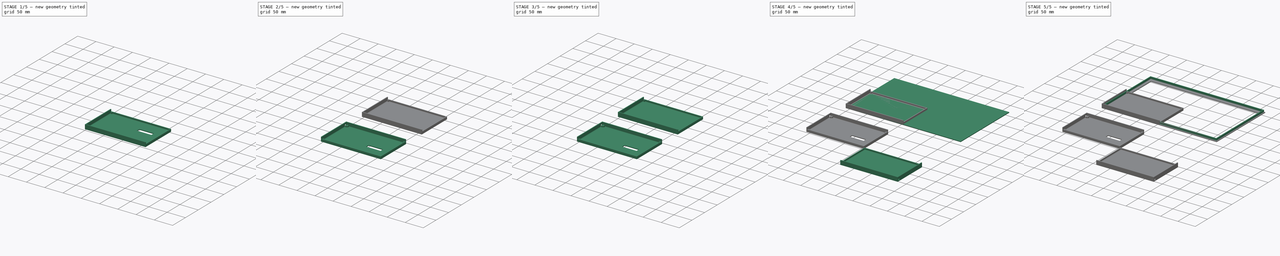
[diagram: build sequence overview — one tinted view per stage of 5, left to right]
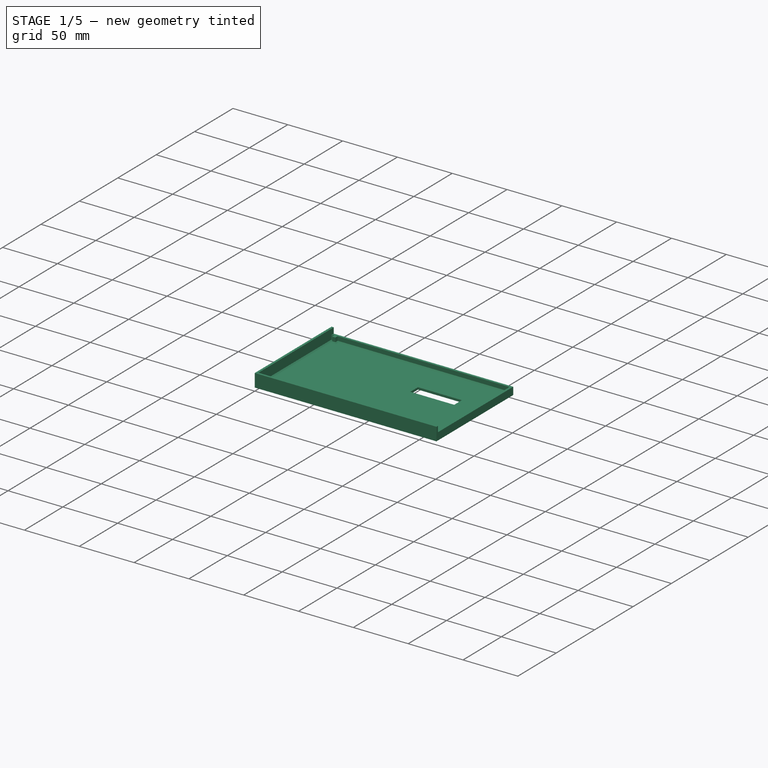
[diagram: stage 1 of 5 — iso view after this stage's code; geometry added in this stage tinted green]
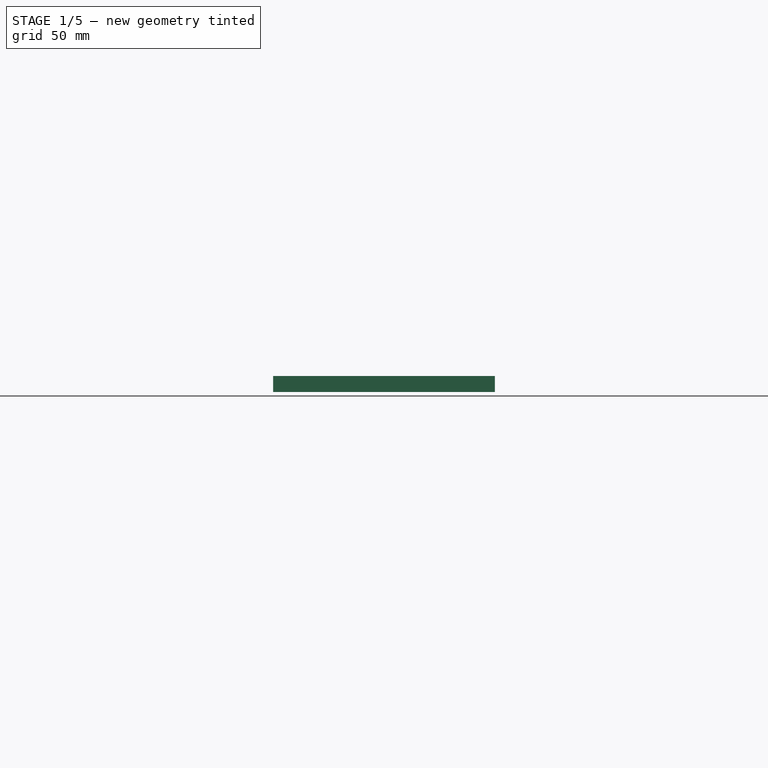
[diagram: stage 1 of 5 — front view after this stage's code; geometry added in this stage tinted green]
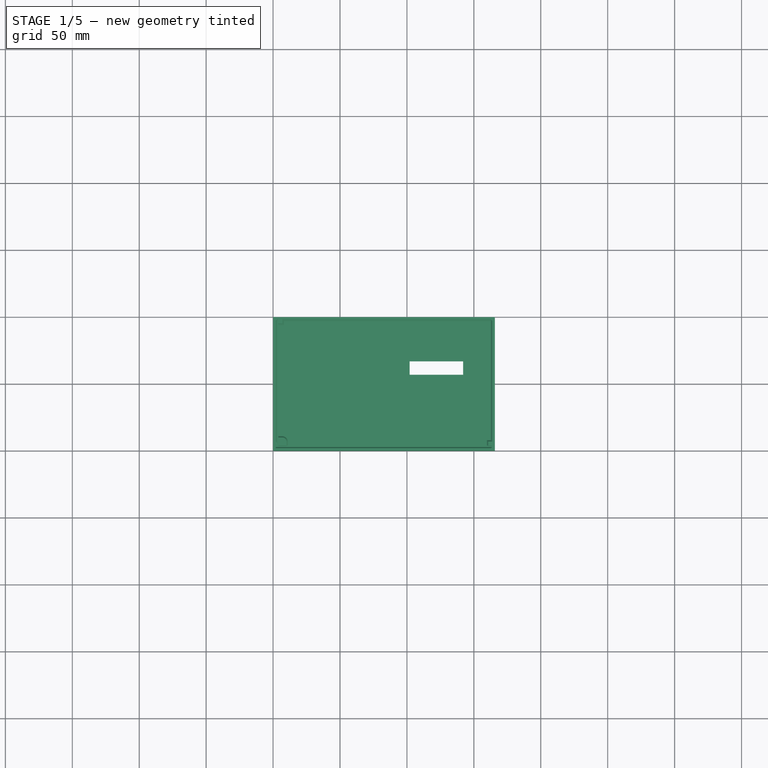
[diagram: stage 1 of 5 — top view after this stage's code; geometry added in this stage tinted green]
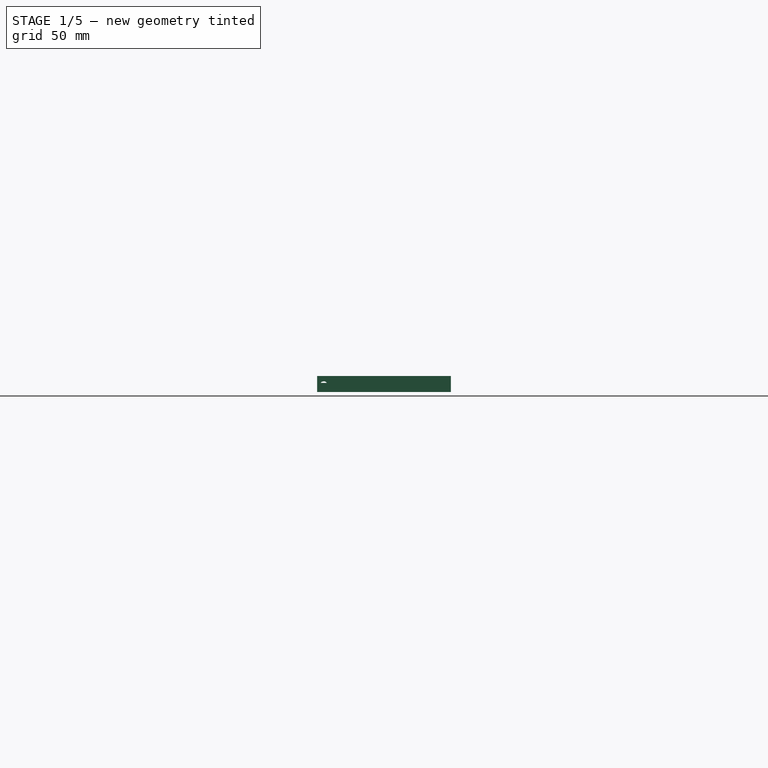
[diagram: stage 1 of 5 — right view after this stage's code; geometry added in this stage tinted green]
FCSTD DOCUMENT  (FreeCAD 0.18.4R)
Label: monitor_cradle_bezel
License: All rights reserved
LicenseURL: http://en.wikipedia.org/wiki/All_rights_reserved
objects: Sketcher::SketchObject×19, PartDesign::Pad×14, PartDesign::Chamfer×8, App::MeasureDistance×6, PartDesign::Pocket×5, PartDesign::Fillet×4, PartDesign::Body×4, Part::Mirroring×2
note: 75 computed .brp shape members not serialized (recipe doc carries the construction recipe); baked Part::Feature solids carry a one-line shape summary decoded from their .brp

FEATURE [Sketcher::SketchObject] Sketch013  label="BackAPlate002"
  MapMode = 5
  Support = -> [XY_Plane003]
  sketch-geometry (4):
    g0: LineSegment StartX=0 StartY=100 StartZ=0 EndX=165.75 EndY=100 EndZ=0
    g1: LineSegment StartX=165.75 StartY=100 StartZ=0 EndX=165.75 EndY=0 EndZ=0
    g2: LineSegment StartX=165.75 StartY=0 StartZ=0 EndX=0 EndY=0 EndZ=0
    g3: LineSegment StartX=0 StartY=0 StartZ=0 EndX=0 EndY=100 EndZ=0
  constraints (11):
    c: Coincident(g0,g1)
    c: Coincident(g1,g2)
    c: Coincident(g2,g3)
    c: Coincident(g3,g0)
    c: Horizontal(g0)
    c: Horizontal(g2)
    c: Vertical(g1)
    c: Vertical(g3)
    c: Coincident(g2,g-1)
    c: DistanceX(g2,g2) = 165.75
    c: DistanceY(g3,g3) = 100
FEATURE [PartDesign::Pad] Pad010  label="BackAPlatePad002"
  Length = 2
  Length2 = 100
  Profile = -> Sketch013
  Type = 0
FEATURE [Sketcher::SketchObject] Sketch014  label="BackAExtWalls002"
  ExternalGeometry = -> [Pad010]
  MapMode = 5
  Placement = pos=(0,0,2) rot=(0,0,1;0rad)
  Support = -> [Pad010]
  sketch-geometry (6):
    g0: LineSegment StartX=0 StartY=100 StartZ=0 EndX=0 EndY=0 EndZ=0
    g1: LineSegment StartX=0 StartY=0 StartZ=0 EndX=165.75 EndY=0 EndZ=0
    g2: LineSegment StartX=2 StartY=100 StartZ=0 EndX=2 EndY=2 EndZ=0
    g3: LineSegment StartX=2 StartY=2 StartZ=0 EndX=165.75 EndY=2 EndZ=0
    g4: LineSegment StartX=0 StartY=100 StartZ=0 EndX=2 EndY=100 EndZ=0
    g5: LineSegment StartX=165.75 StartY=2 StartZ=0 EndX=165.75 EndY=0 EndZ=0
  constraints (15):
    c: Coincident(g0,g-3)
    c: Coincident(g0,g-1)
    c: Coincident(g1,g0)
    c: Coincident(g1,g-4)
    c: Coincident(g2,g3)
    c: DistanceX(g0,g2) = 2
    c: DistanceY(g0,g2) = 2
    c: Coincident(g4,g0)
    c: DistanceX(g0,g4) = 2
    c: Horizontal(g4)
    c: Coincident(g4,g2)
    c: DistanceY(g5,g5) = 2
    c: Vertical(g5)
    c: Coincident(g5,g1)
    c: Coincident(g3,g5)
FEATURE [PartDesign::Pad] Pad011  label="BackAExtWallsPad002"
  BaseFeature = -> Pad010
  Length = 10
  Length2 = 100
  Profile = -> Sketch014
  Type = 0
FEATURE [Sketcher::SketchObject] Sketch015  label="BackAScreenSupports002"
  ExternalGeometry = -> [Pad011]
  MapMode = 5
  Placement = pos=(0,0,2) rot=(0,0,1;0rad)
  Support = -> [Pad011]
  sketch-geometry (13):
    g0: LineSegment StartX=4 StartY=4 StartZ=0 EndX=10 EndY=4 EndZ=0
    g1: LineSegment StartX=10 StartY=4 StartZ=0 EndX=10 EndY=7 EndZ=0
    g2: LineSegment StartX=7 StartY=10 StartZ=0 EndX=4 EndY=10 EndZ=0
    g3: LineSegment StartX=4 StartY=10 StartZ=0 EndX=4 EndY=4 EndZ=0
    g4: ArcOfCircle CenterX=7 CenterY=7 CenterZ=0 NormalX=0 NormalY=0 NormalZ=1 AngleXU=0 Radius=3 StartAngle=-1.6e-14 EndAngle=1.5708
    g5: LineSegment StartX=4 StartY=98 StartZ=0 EndX=7 EndY=98 EndZ=0
    g6: LineSegment StartX=7 StartY=98 StartZ=0 EndX=7 EndY=95 EndZ=0
    g7: LineSegment StartX=7 StartY=95 StartZ=0 EndX=4 EndY=95 EndZ=0
    g8: LineSegment StartX=4 StartY=95 StartZ=0 EndX=4 EndY=98 EndZ=0
    g9: LineSegment StartX=160.75 StartY=7 StartZ=0 EndX=163.75 EndY=7 EndZ=0
    g10: LineSegment StartX=163.75 StartY=7 StartZ=0 EndX=163.75 EndY=4 EndZ=0
    g11: LineSegment StartX=163.75 StartY=4 StartZ=0 EndX=160.75 EndY=4 EndZ=0
    g12: LineSegment StartX=160.75 StartY=4 StartZ=0 EndX=160.75 EndY=7 EndZ=0
  constraints (38):
    c: Coincident(g0,g1)
    c: Coincident(g2,g3)
    c: Coincident(g3,g0)
    c: Horizontal(g0)
    c: Horizontal(g2)
    c: Vertical(g1)
    c: Vertical(g3)
    c: Tangent(g1,g4) = -1.5708
    c: Tangent(g2,g4) = -1.5708
    c: DistanceX(g0,g4) = 3
    c: DistanceX(g0,g0) = 6
    c: Equal(g0,g3)
    c: Coincident(g5,g6)
    c: Coincident(g6,g7)
    c: Coincident(g7,g8)
    c: Coincident(g8,g5)
    c: Horizontal(g5)
    c: Horizontal(g7)
    c: Vertical(g6)
    c: Vertical(g8)
    c: DistanceY(g-5,g0) = 2
    c: DistanceX(g-5,g0) = 2
    c: DistanceX(g-4,g5) = 2
    c: DistanceY(g5,g-4) = 2
    c: DistanceX(g5,g5) = 3
    c: DistanceY(g8,g8) = 3
    c: Coincident(g9,g10)
    c: Coincident(g10,g11)
    c: Coincident(g11,g12)
    c: Coincident(g12,g9)
    c: Horizontal(g9)
    c: Horizontal(g11)
    c: Vertical(g10)
    c: Vertical(g12)
    c: DistanceY(g12,g12) = 3
    c: DistanceX(g9,g9) = 3
    c: DistanceX(g10,g-5) = 2
    c: DistanceY(g-5,g10) = 2
FEATURE [PartDesign::Pad] Pad012  label="BackAScreenSupportPad002"
  BaseFeature = -> Pad011
  Length = 4.8
  Length2 = 100
  Profile = -> Sketch015
  Type = 0
FEATURE [Sketcher::SketchObject] Sketch016  label="BackADividers002"
  ExternalGeometry = -> [Pad012]
  MapMode = 5
  Placement = pos=(0,0,2) rot=(0,0,1;0rad)
  Support = -> [Pad012]
  sketch-geometry (7):
    g0: LineSegment StartX=2 StartY=98 StartZ=0 EndX=2 EndY=100 EndZ=0
    g1: LineSegment StartX=165.75 StartY=100 StartZ=0 EndX=165.75 EndY=2 EndZ=0
    g2: LineSegment StartX=165.75 StartY=2 StartZ=0 EndX=163.75 EndY=2 EndZ=0
    g3: GeomPoint X=163.75 Y=98 Z=0
    g4: LineSegment StartX=2 StartY=98 StartZ=0 EndX=163.75 EndY=98 EndZ=0
    g5: LineSegment StartX=163.75 StartY=98 StartZ=0 EndX=163.75 EndY=2 EndZ=0
    g6: LineSegment StartX=2 StartY=100 StartZ=0 EndX=165.75 EndY=100 EndZ=0
  constraints (16):
    c: Vertical(g0)
    c: Coincident(g1,g2)
    c: Horizontal(g2)
    c: Coincident(g1,g-4)
    c: Coincident(g0,g4)
    c: Coincident(g3,g4)
    c: Coincident(g2,g5)
    c: Coincident(g5,g3)
    c: DistanceX(g2,g1) = 2
    c: DistanceY(g0,g0) = 2
    c: Coincident(g-4,g1)
    c: Coincident(g6,g1)
    c: Coincident(g0,g6)
    c: Horizontal(g4)
    c: DistanceX(g3,g1) = 2
    c: Coincident(g0,g-3)
FEATURE [PartDesign::Pad] Pad013  label="BackADividerPad002"
  BaseFeature = -> Pad012
  Length = 4.8
  Length2 = 100
  Profile = -> Sketch016
  Type = 0
FEATURE [Sketcher::SketchObject] Sketch017
  MapMode = 5
  Placement = pos=(0,0,0) rot=(0.57735,-0.57735,-0.57735;2.0944rad)
  Support = -> [Pad013]
  sketch-geometry (1):
    g0: Circle CenterX=-5 CenterY=5 CenterZ=0 NormalX=0 NormalY=0 NormalZ=1 AngleXU=0 Radius=3
  constraints (3):
    c: Radius(g0) = 3
    c: DistanceY(g-1,g0) = 5
    c: DistanceX(g0,g-1) = 5
FEATURE [PartDesign::Pocket] Pocket003
  BaseFeature = -> Pad013
  Length = 5
  Length2 = 100
  Profile = -> Sketch017
  Type = 2
FEATURE [Sketcher::SketchObject] Sketch018
  ExternalGeometry = -> [Pocket003]
  MapMode = 5
  Placement = pos=(0,0,2) rot=(0,0,1;0rad)
  Support = -> [Pocket003]
  sketch-geometry (4):
    g0: LineSegment StartX=102 StartY=67 StartZ=0 EndX=142 EndY=67 EndZ=0
    g1: LineSegment StartX=142 StartY=67 StartZ=0 EndX=142 EndY=57 EndZ=0
    g2: LineSegment StartX=142 StartY=57 StartZ=0 EndX=102 EndY=57 EndZ=0
    g3: LineSegment StartX=102 StartY=57 StartZ=0 EndX=102 EndY=67 EndZ=0
  constraints (12):
    c: Coincident(g0,g1)
    c: Coincident(g1,g2)
    c: Coincident(g2,g3)
    c: Coincident(g3,g0)
    c: Horizontal(g0)
    c: Horizontal(g2)
    c: Vertical(g1)
    c: Vertical(g3)
    c: DistanceY(g3,g3) = 10
    c: DistanceX(g0,g0) = 40
    c: DistanceX(g-3,g0) = 100
    c: DistanceY(g0,g-3) = 33
FEATURE [PartDesign::Pocket] Pocket004
  BaseFeature = -> Pocket003
  Length = 5
  Length2 = 100
  Profile = -> Sketch018
  Type = 1
FEATURE [PartDesign::Body] Body001  label="Back000"
  Group = -> [Sketch003,Pad002,Sketch004,Pad003,Sketch005,Pad004,Sketch006,Pad005,Sketch007,Pocket001,Chamfer006]
  Origin = -> Origin001
  Placement = pos=(0,-267,0) rot=(0,0,1;0rad)
  Tip = -> Chamfer006
FEATURE [PartDesign::Chamfer] Chamfer007
  Base = -> Pocket004 [Edge83,Edge70,Edge72,Edge73,Edge71,Edge62,Edge60,Edge44,Edge75,Edge77,Edge78,Edge43,Edge68,Edge66]
  BaseFeature = -> Pocket004
  Size = 1
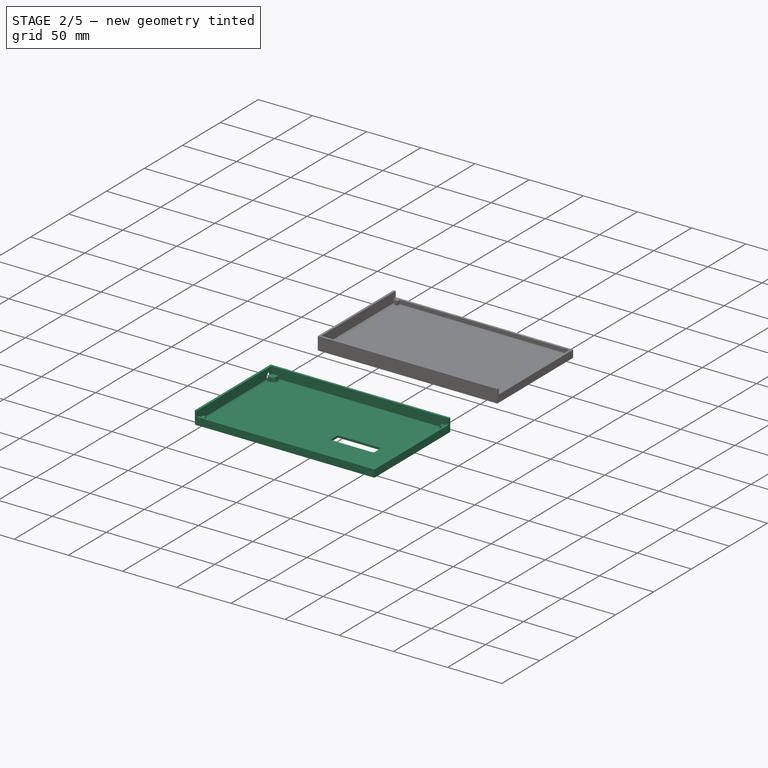
[diagram: stage 2 of 5 — iso view after this stage's code; geometry added in this stage tinted green]
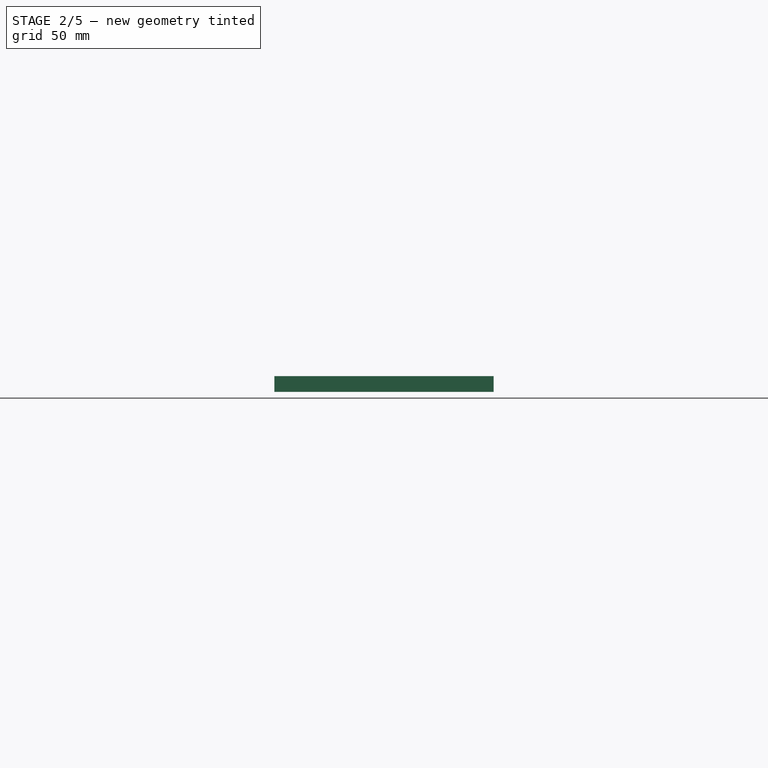
[diagram: stage 2 of 5 — front view after this stage's code; geometry added in this stage tinted green]
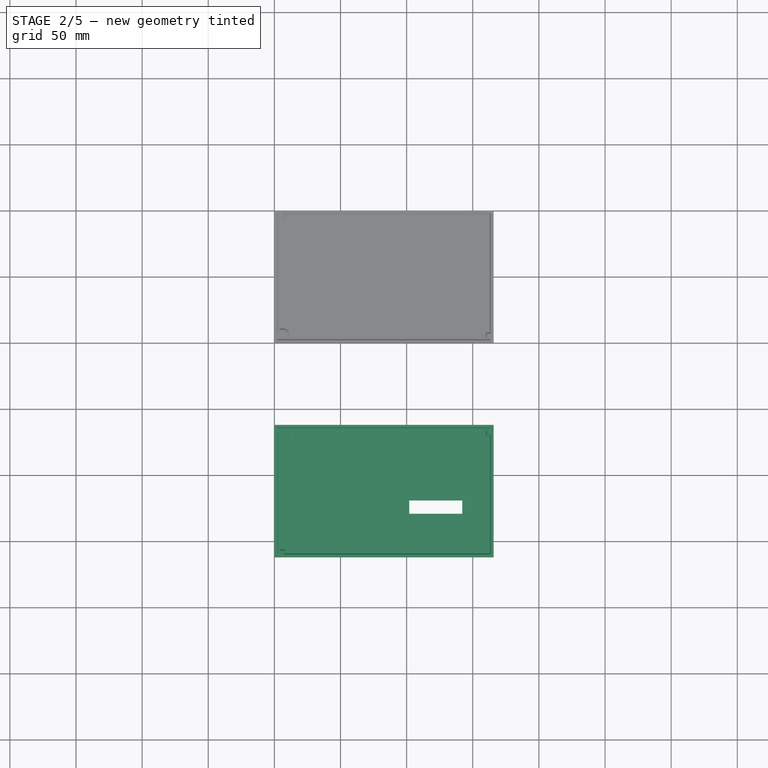
[diagram: stage 2 of 5 — top view after this stage's code; geometry added in this stage tinted green]
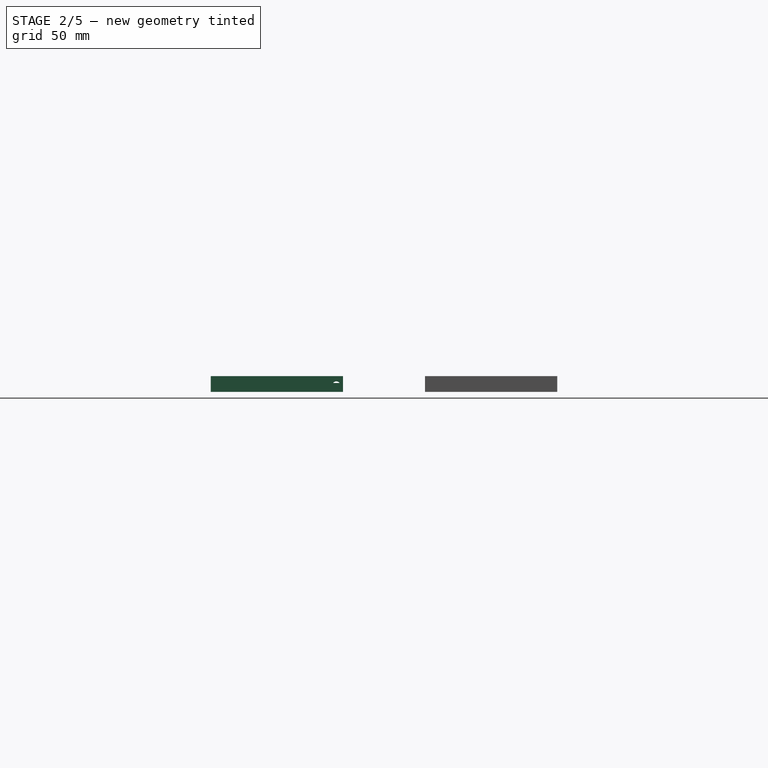
[diagram: stage 2 of 5 — right view after this stage's code; geometry added in this stage tinted green]
FEATURE [Sketcher::SketchObject] Sketch003  label="BackAPlate"
  MapMode = 5
  Support = -> [XY_Plane001]
  sketch-geometry (4):
    g0: LineSegment StartX=0 StartY=100 StartZ=0 EndX=165.75 EndY=100 EndZ=0
    g1: LineSegment StartX=165.75 StartY=100 StartZ=0 EndX=165.75 EndY=0 EndZ=0
    g2: LineSegment StartX=165.75 StartY=0 StartZ=0 EndX=0 EndY=0 EndZ=0
    g3: LineSegment StartX=0 StartY=0 StartZ=0 EndX=0 EndY=100 EndZ=0
  constraints (11):
    c: Coincident(g0,g1)
    c: Coincident(g1,g2)
    c: Coincident(g2,g3)
    c: Coincident(g3,g0)
    c: Horizontal(g0)
    c: Horizontal(g2)
    c: Vertical(g1)
    c: Vertical(g3)
    c: Coincident(g2,g-1)
    c: DistanceX(g2,g2) = 165.75
    c: DistanceY(g3,g3) = 100
FEATURE [PartDesign::Pad] Pad002  label="BackAPlatePad"
  Length = 2
  Length2 = 100
  Profile = -> Sketch003
  Type = 0
FEATURE [Sketcher::SketchObject] Sketch004  label="BackAExtWalls"
  ExternalGeometry = -> [Pad002]
  MapMode = 5
  Placement = pos=(0,0,2) rot=(0,0,1;0rad)
  Support = -> [Pad002]
  sketch-geometry (6):
    g0: LineSegment StartX=0 StartY=100 StartZ=0 EndX=0 EndY=0 EndZ=0
    g1: LineSegment StartX=0 StartY=0 StartZ=0 EndX=165.75 EndY=0 EndZ=0
    g2: LineSegment StartX=2 StartY=100 StartZ=0 EndX=2 EndY=2 EndZ=0
    g3: LineSegment StartX=2 StartY=2 StartZ=0 EndX=165.75 EndY=2 EndZ=0
    g4: LineSegment StartX=0 StartY=100 StartZ=0 EndX=2 EndY=100 EndZ=0
    g5: LineSegment StartX=165.75 StartY=2 StartZ=0 EndX=165.75 EndY=0 EndZ=0
  constraints (15):
    c: Coincident(g0,g-3)
    c: Coincident(g0,g-1)
    c: Coincident(g1,g0)
    c: Coincident(g1,g-4)
    c: Coincident(g2,g3)
    c: DistanceX(g0,g2) = 2
    c: DistanceY(g0,g2) = 2
    c: Coincident(g4,g0)
    c: DistanceX(g0,g4) = 2
    c: Horizontal(g4)
    c: Coincident(g4,g2)
    c: DistanceY(g5,g5) = 2
    c: Vertical(g5)
    c: Coincident(g5,g1)
    c: Coincident(g3,g5)
FEATURE [PartDesign::Pad] Pad003  label="BackAExtWallsPad"
  BaseFeature = -> Pad002
  Length = 10
  Length2 = 100
  Profile = -> Sketch004
  Type = 0
FEATURE [Sketcher::SketchObject] Sketch005  label="BackAScreenSupports"
  ExternalGeometry = -> [Pad003]
  MapMode = 5
  Placement = pos=(0,0,2) rot=(0,0,1;0rad)
  Support = -> [Pad003]
  sketch-geometry (13):
    g0: LineSegment StartX=4 StartY=4 StartZ=0 EndX=10 EndY=4 EndZ=0
    g1: LineSegment StartX=10 StartY=4 StartZ=0 EndX=10 EndY=7 EndZ=0
    g2: LineSegment StartX=7 StartY=10 StartZ=0 EndX=4 EndY=10 EndZ=0
    g3: LineSegment StartX=4 StartY=10 StartZ=0 EndX=4 EndY=4 EndZ=0
    g4: ArcOfCircle CenterX=7 CenterY=7 CenterZ=0 NormalX=0 NormalY=0 NormalZ=1 AngleXU=0 Radius=3 StartAngle=-1.6e-14 EndAngle=1.5708
    g5: LineSegment StartX=4 StartY=98 StartZ=0 EndX=7 EndY=98 EndZ=0
    g6: LineSegment StartX=7 StartY=98 StartZ=0 EndX=7 EndY=95 EndZ=0
    g7: LineSegment StartX=7 StartY=95 StartZ=0 EndX=4 EndY=95 EndZ=0
    g8: LineSegment StartX=4 StartY=95 StartZ=0 EndX=4 EndY=98 EndZ=0
    g9: LineSegment StartX=160.75 StartY=7 StartZ=0 EndX=163.75 EndY=7 EndZ=0
    g10: LineSegment StartX=163.75 StartY=7 StartZ=0 EndX=163.75 EndY=4 EndZ=0
    g11: LineSegment StartX=163.75 StartY=4 StartZ=0 EndX=160.75 EndY=4 EndZ=0
    g12: LineSegment StartX=160.75 StartY=4 StartZ=0 EndX=160.75 EndY=7 EndZ=0
  constraints (38):
    c: Coincident(g0,g1)
    c: Coincident(g2,g3)
    c: Coincident(g3,g0)
    c: Horizontal(g0)
    c: Horizontal(g2)
    c: Vertical(g1)
    c: Vertical(g3)
    c: Tangent(g1,g4) = -1.5708
    c: Tangent(g2,g4) = -1.5708
    c: DistanceX(g0,g4) = 3
    c: DistanceX(g0,g0) = 6
    c: Equal(g0,g3)
    c: Coincident(g5,g6)
    c: Coincident(g6,g7)
    c: Coincident(g7,g8)
    c: Coincident(g8,g5)
    c: Horizontal(g5)
    c: Horizontal(g7)
    c: Vertical(g6)
    c: Vertical(g8)
    c: DistanceY(g-5,g0) = 2
    c: DistanceX(g-5,g0) = 2
    c: DistanceX(g-4,g5) = 2
    c: DistanceY(g5,g-4) = 2
    c: DistanceX(g5,g5) = 3
    c: DistanceY(g8,g8) = 3
    c: Coincident(g9,g10)
    c: Coincident(g10,g11)
    c: Coincident(g11,g12)
    c: Coincident(g12,g9)
    c: Horizontal(g9)
    c: Horizontal(g11)
    c: Vertical(g10)
    c: Vertical(g12)
    c: DistanceY(g12,g12) = 3
    c: DistanceX(g9,g9) = 3
    c: DistanceX(g10,g-5) = 2
    c: DistanceY(g-5,g10) = 2
FEATURE [PartDesign::Pad] Pad004  label="BackAScreenSupportPad"
  BaseFeature = -> Pad003
  Length = 4.8
  Length2 = 100
  Profile = -> Sketch005
  Type = 0
FEATURE [Sketcher::SketchObject] Sketch006  label="BackADividers"
  ExternalGeometry = -> [Pad004]
  MapMode = 5
  Placement = pos=(0,0,2) rot=(0,0,1;0rad)
  Support = -> [Pad004]
  sketch-geometry (7):
    g0: LineSegment StartX=2 StartY=98 StartZ=0 EndX=2 EndY=100 EndZ=0
    g1: LineSegment StartX=165.75 StartY=100 StartZ=0 EndX=165.75 EndY=2 EndZ=0
    g2: LineSegment StartX=165.75 StartY=2 StartZ=0 EndX=163.75 EndY=2 EndZ=0
    g3: GeomPoint X=163.75 Y=98 Z=0
    g4: LineSegment StartX=2 StartY=98 StartZ=0 EndX=163.75 EndY=98 EndZ=0
    g5: LineSegment StartX=163.75 StartY=98 StartZ=0 EndX=163.75 EndY=2 EndZ=0
    g6: LineSegment StartX=2 StartY=100 StartZ=0 EndX=165.75 EndY=100 EndZ=0
  constraints (16):
    c: Vertical(g0)
    c: Coincident(g1,g2)
    c: Horizontal(g2)
    c: Coincident(g1,g-4)
    c: Coincident(g0,g4)
    c: Coincident(g3,g4)
    c: Coincident(g2,g5)
    c: Coincident(g5,g3)
    c: DistanceX(g2,g1) = 2
    c: DistanceY(g0,g0) = 2
    c: Coincident(g-4,g1)
    c: Coincident(g6,g1)
    c: Coincident(g0,g6)
    c: Horizontal(g4)
    c: DistanceX(g3,g1) = 2
    c: Coincident(g0,g-3)
FEATURE [PartDesign::Pad] Pad005  label="BackADividerPad"
  BaseFeature = -> Pad004
  Length = 4.8
  Length2 = 100
  Profile = -> Sketch006
  Type = 0
FEATURE [Part::Mirroring] Part__Mirroring001  label="Chamfer007 (Mirror #2)"
  Base = (0,0,0)
  Normal = (0,1,0)
  Placement = pos=(0,-62,0) rot=(0,0,1;0rad)
  Source = -> Chamfer007
FEATURE [PartDesign::Fillet] Fillet003
  Base = -> Chamfer007 [Edge118,Edge115,Edge113,Edge116]
  BaseFeature = -> Chamfer007
  Radius = 1
FEATURE [PartDesign::Body] Body003  label="Back002"
  Group = -> [Sketch013,Pad010,Sketch014,Pad011,Sketch015,Pad012,Sketch016,Pad013,Sketch017,Pocket003,Sketch018,Pocket004,Chamfer007,Fillet003]
  Origin = -> Origin003
  Placement = pos=(0,9,0) rot=(0,0,1;0rad)
  Tip = -> Fillet003
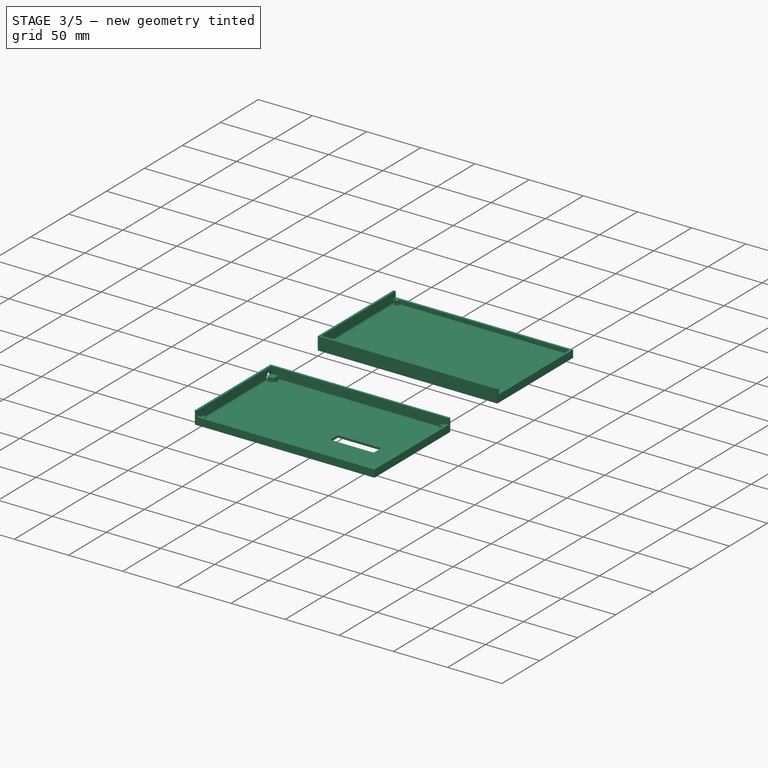
[diagram: stage 3 of 5 — iso view after this stage's code; geometry added in this stage tinted green]
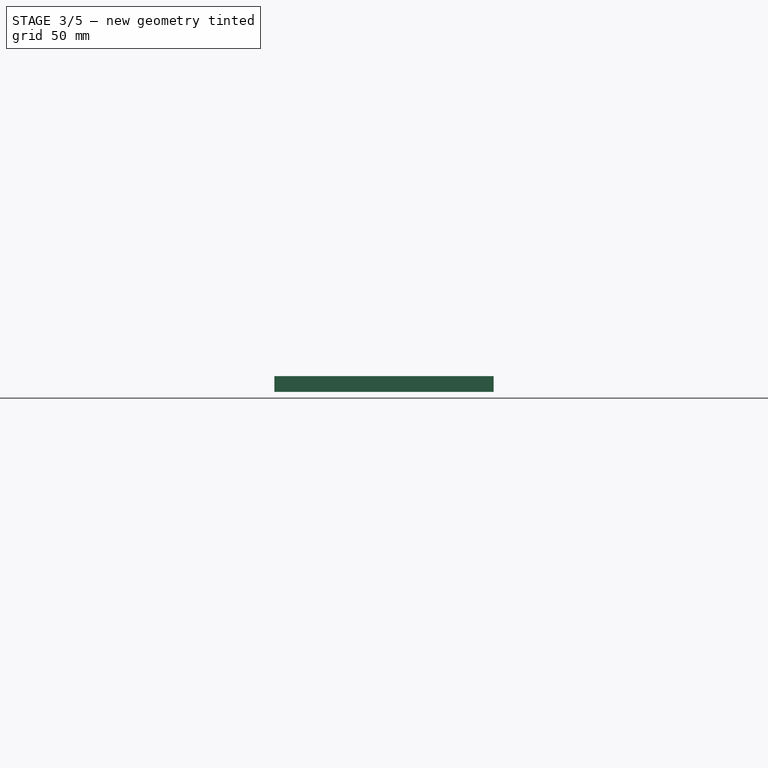
[diagram: stage 3 of 5 — front view after this stage's code; geometry added in this stage tinted green]
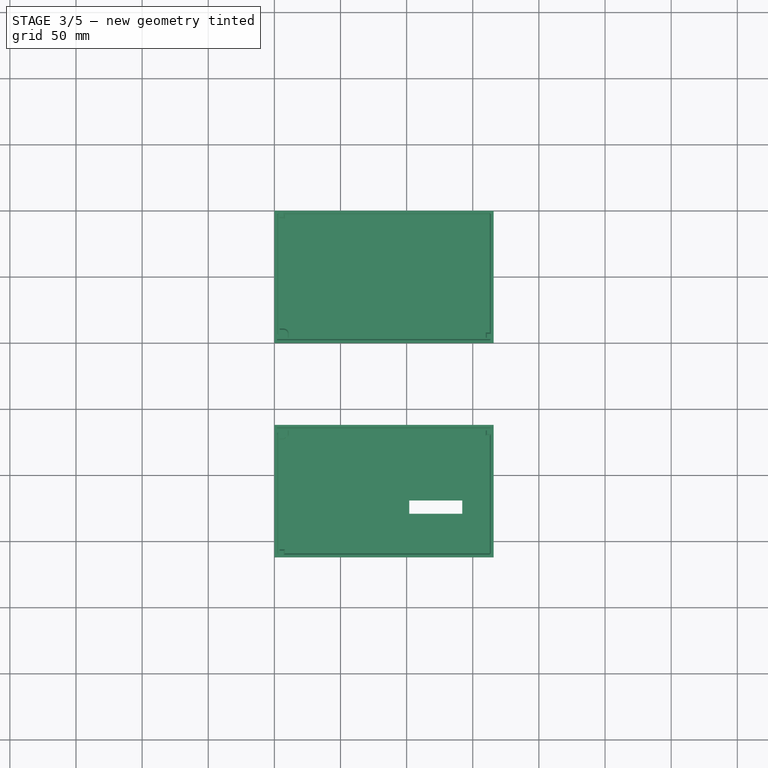
[diagram: stage 3 of 5 — top view after this stage's code; geometry added in this stage tinted green]
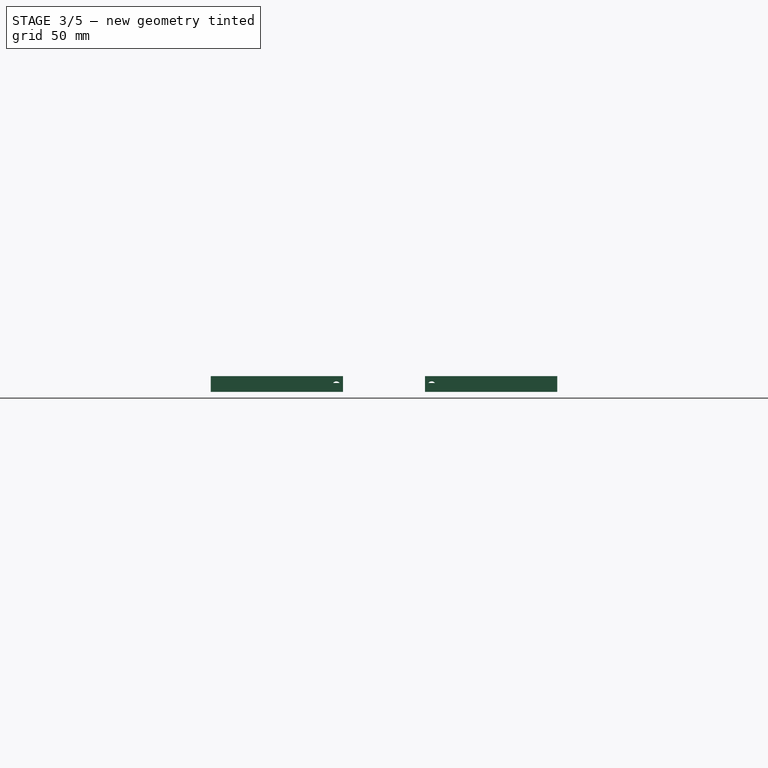
[diagram: stage 3 of 5 — right view after this stage's code; geometry added in this stage tinted green]
FEATURE [PartDesign::Body] Body  label="Bezel"
  Group = -> [Sketch,Pad,Sketch001,Pocket,Sketch002,Pad001,Chamfer,Chamfer001,Fillet,Fillet001,Fillet002]
  Origin = -> Origin
  Tip = -> Fillet002
FEATURE [Sketcher::SketchObject] Sketch007
  MapMode = 5
  Placement = pos=(0,0,0) rot=(0.57735,-0.57735,-0.57735;2.0944rad)
  Support = -> [Pad005]
  sketch-geometry (1):
    g0: Circle CenterX=-5 CenterY=5 CenterZ=0 NormalX=0 NormalY=0 NormalZ=1 AngleXU=0 Radius=3
  constraints (3):
    c: Radius(g0) = 3
    c: DistanceY(g-1,g0) = 5
    c: DistanceX(g0,g-1) = 5
FEATURE [PartDesign::Pocket] Pocket001
  BaseFeature = -> Pad005
  Length = 5
  Length2 = 100
  Profile = -> Sketch007
  Type = 2
FEATURE [Sketcher::SketchObject] Sketch008  label="BackAPlate001"
  MapMode = 5
  Support = -> [XY_Plane002]
  sketch-geometry (4):
    g0: LineSegment StartX=0 StartY=100 StartZ=0 EndX=165.75 EndY=100 EndZ=0
    g1: LineSegment StartX=165.75 StartY=100 StartZ=0 EndX=165.75 EndY=0 EndZ=0
    g2: LineSegment StartX=165.75 StartY=0 StartZ=0 EndX=0 EndY=0 EndZ=0
    g3: LineSegment StartX=0 StartY=0 StartZ=0 EndX=0 EndY=100 EndZ=0
  constraints (11):
    c: Coincident(g0,g1)
    c: Coincident(g1,g2)
    c: Coincident(g2,g3)
    c: Coincident(g3,g0)
    c: Horizontal(g0)
    c: Horizontal(g2)
    c: Vertical(g1)
    c: Vertical(g3)
    c: Coincident(g2,g-1)
    c: DistanceX(g2,g2) = 165.75
    c: DistanceY(g3,g3) = 100
FEATURE [PartDesign::Pad] Pad006  label="BackAPlatePad001"
  Length = 2
  Length2 = 100
  Profile = -> Sketch008
  Type = 0
FEATURE [Sketcher::SketchObject] Sketch009  label="BackAExtWalls001"
  ExternalGeometry = -> [Pad006]
  MapMode = 5
  Placement = pos=(0,0,2) rot=(0,0,1;0rad)
  Support = -> [Pad006]
  sketch-geometry (6):
    g0: LineSegment StartX=0 StartY=100 StartZ=0 EndX=0 EndY=0 EndZ=0
    g1: LineSegment StartX=0 StartY=0 StartZ=0 EndX=165.75 EndY=0 EndZ=0
    g2: LineSegment StartX=2 StartY=100 StartZ=0 EndX=2 EndY=2 EndZ=0
    g3: LineSegment StartX=2 StartY=2 StartZ=0 EndX=165.75 EndY=2 EndZ=0
    g4: LineSegment StartX=0 StartY=100 StartZ=0 EndX=2 EndY=100 EndZ=0
    g5: LineSegment StartX=165.75 StartY=2 StartZ=0 EndX=165.75 EndY=0 EndZ=0
  constraints (15):
    c: Coincident(g0,g-3)
    c: Coincident(g0,g-1)
    c: Coincident(g1,g0)
    c: Coincident(g1,g-4)
    c: Coincident(g2,g3)
    c: DistanceX(g0,g2) = 2
    c: DistanceY(g0,g2) = 2
    c: Coincident(g4,g0)
    c: DistanceX(g0,g4) = 2
    c: Horizontal(g4)
    c: Coincident(g4,g2)
    c: DistanceY(g5,g5) = 2
    c: Vertical(g5)
    c: Coincident(g5,g1)
    c: Coincident(g3,g5)
FEATURE [PartDesign::Pad] Pad007  label="BackAExtWallsPad001"
  BaseFeature = -> Pad006
  Length = 10
  Length2 = 100
  Profile = -> Sketch009
  Type = 0
FEATURE [Sketcher::SketchObject] Sketch010  label="BackAScreenSupports001"
  ExternalGeometry = -> [Pad007]
  MapMode = 5
  Placement = pos=(0,0,2) rot=(0,0,1;0rad)
  Support = -> [Pad007]
  sketch-geometry (13):
    g0: LineSegment StartX=4 StartY=4 StartZ=0 EndX=10 EndY=4 EndZ=0
    g1: LineSegment StartX=10 StartY=4 StartZ=0 EndX=10 EndY=7 EndZ=0
    g2: LineSegment StartX=7 StartY=10 StartZ=0 EndX=4 EndY=10 EndZ=0
    g3: LineSegment StartX=4 StartY=10 StartZ=0 EndX=4 EndY=4 EndZ=0
    g4: ArcOfCircle CenterX=7 CenterY=7 CenterZ=0 NormalX=0 NormalY=0 NormalZ=1 AngleXU=0 Radius=3 StartAngle=-1.6e-14 EndAngle=1.5708
    g5: LineSegment StartX=4 StartY=98 StartZ=0 EndX=7 EndY=98 EndZ=0
    g6: LineSegment StartX=7 StartY=98 StartZ=0 EndX=7 EndY=95 EndZ=0
    g7: LineSegment StartX=7 StartY=95 StartZ=0 EndX=4 EndY=95 EndZ=0
    g8: LineSegment StartX=4 StartY=95 StartZ=0 EndX=4 EndY=98 EndZ=0
    g9: LineSegment StartX=160.75 StartY=7 StartZ=0 EndX=163.75 EndY=7 EndZ=0
    g10: LineSegment StartX=163.75 StartY=7 StartZ=0 EndX=163.75 EndY=4 EndZ=0
    g11: LineSegment StartX=163.75 StartY=4 StartZ=0 EndX=160.75 EndY=4 EndZ=0
    g12: LineSegment StartX=160.75 StartY=4 StartZ=0 EndX=160.75 EndY=7 EndZ=0
  constraints (38):
    c: Coincident(g0,g1)
    c: Coincident(g2,g3)
    c: Coincident(g3,g0)
    c: Horizontal(g0)
    c: Horizontal(g2)
    c: Vertical(g1)
    c: Vertical(g3)
    c: Tangent(g1,g4) = -1.5708
    c: Tangent(g2,g4) = -1.5708
    c: DistanceX(g0,g4) = 3
    c: DistanceX(g0,g0) = 6
    c: Equal(g0,g3)
    c: Coincident(g5,g6)
    c: Coincident(g6,g7)
    c: Coincident(g7,g8)
    c: Coincident(g8,g5)
    c: Horizontal(g5)
    c: Horizontal(g7)
    c: Vertical(g6)
    c: Vertical(g8)
    c: DistanceY(g-5,g0) = 2
    c: DistanceX(g-5,g0) = 2
    c: DistanceX(g-4,g5) = 2
    c: DistanceY(g5,g-4) = 2
    c: DistanceX(g5,g5) = 3
    c: DistanceY(g8,g8) = 3
    c: Coincident(g9,g10)
    c: Coincident(g10,g11)
    c: Coincident(g11,g12)
    c: Coincident(g12,g9)
    c: Horizontal(g9)
    c: Horizontal(g11)
    c: Vertical(g10)
    c: Vertical(g12)
    c: DistanceY(g12,g12) = 3
    c: DistanceX(g9,g9) = 3
    c: DistanceX(g10,g-5) = 2
    c: DistanceY(g-5,g10) = 2
FEATURE [PartDesign::Pad] Pad008  label="BackAScreenSupportPad001"
  BaseFeature = -> Pad007
  Length = 4.8
  Length2 = 100
  Profile = -> Sketch010
  Type = 0
FEATURE [Sketcher::SketchObject] Sketch011  label="BackADividers001"
  ExternalGeometry = -> [Pad008]
  MapMode = 5
  Placement = pos=(0,0,2) rot=(0,0,1;0rad)
  Support = -> [Pad008]
  sketch-geometry (7):
    g0: LineSegment StartX=2 StartY=98 StartZ=0 EndX=2 EndY=100 EndZ=0
    g1: LineSegment StartX=165.75 StartY=100 StartZ=0 EndX=165.75 EndY=2 EndZ=0
    g2: LineSegment StartX=165.75 StartY=2 StartZ=0 EndX=163.75 EndY=2 EndZ=0
    g3: GeomPoint X=163.75 Y=98 Z=0
    g4: LineSegment StartX=2 StartY=98 StartZ=0 EndX=163.75 EndY=98 EndZ=0
    g5: LineSegment StartX=163.75 StartY=98 StartZ=0 EndX=163.75 EndY=2 EndZ=0
    g6: LineSegment StartX=2 StartY=100 StartZ=0 EndX=165.75 EndY=100 EndZ=0
  constraints (16):
    c: Vertical(g0)
    c: Coincident(g1,g2)
    c: Horizontal(g2)
    c: Coincident(g1,g-4)
    c: Coincident(g0,g4)
    c: Coincident(g3,g4)
    c: Coincident(g2,g5)
    c: Coincident(g5,g3)
    c: DistanceX(g2,g1) = 2
    c: DistanceY(g0,g0) = 2
    c: Coincident(g-4,g1)
    c: Coincident(g6,g1)
    c: Coincident(g0,g6)
    c: Horizontal(g4)
    c: DistanceX(g3,g1) = 2
    c: Coincident(g0,g-3)
FEATURE [PartDesign::Pad] Pad009  label="BackADividerPad001"
  BaseFeature = -> Pad008
  Length = 4.8
  Length2 = 100
  Profile = -> Sketch011
  Type = 0
FEATURE [Sketcher::SketchObject] Sketch012
  MapMode = 5
  Placement = pos=(0,0,0) rot=(0.57735,-0.57735,-0.57735;2.0944rad)
  Support = -> [Pad009]
  sketch-geometry (1):
    g0: Circle CenterX=-5 CenterY=5 CenterZ=0 NormalX=0 NormalY=0 NormalZ=1 AngleXU=0 Radius=3
  constraints (3):
    c: Radius(g0) = 3
    c: DistanceY(g-1,g0) = 5
    c: DistanceX(g0,g-1) = 5
FEATURE [PartDesign::Pocket] Pocket002
  BaseFeature = -> Pad009
  Length = 5
  Length2 = 100
  Profile = -> Sketch012
  Type = 2
FEATURE [PartDesign::Chamfer] Chamfer006
  Base = -> Pocket001 [Edge61,Edge71,Edge59,Edge55,Edge57,Edge32,Edge31,Edge48,Edge67,Edge66,Edge64,Edge62,Edge60,Edge50]
  BaseFeature = -> Pocket001
  Size = 1
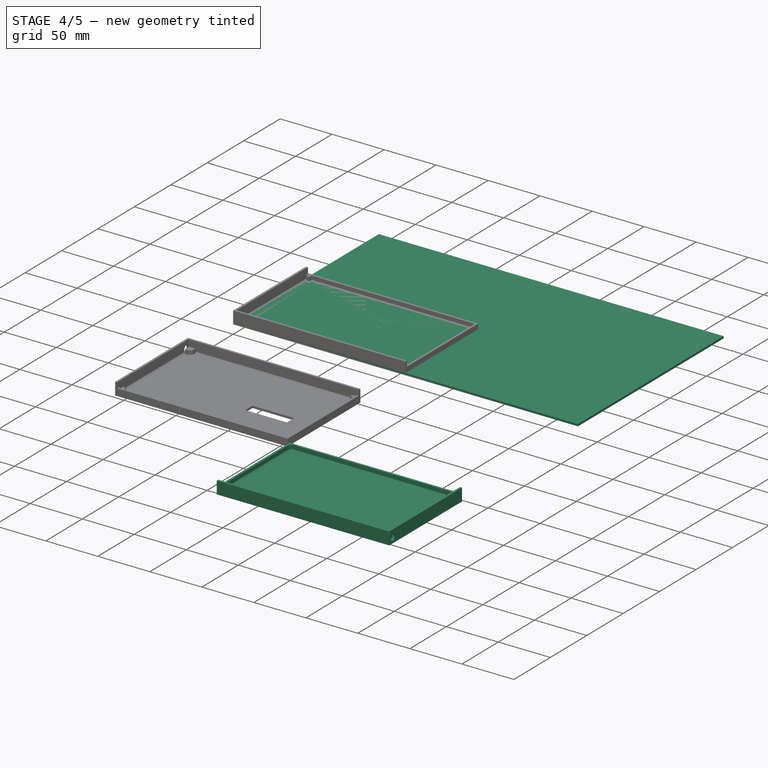
[diagram: stage 4 of 5 — iso view after this stage's code; geometry added in this stage tinted green]
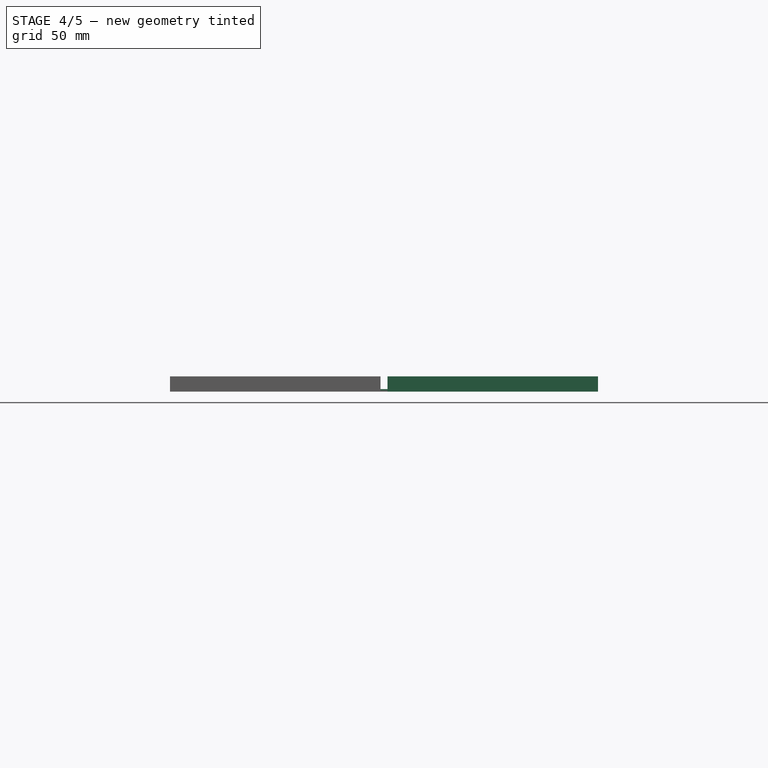
[diagram: stage 4 of 5 — front view after this stage's code; geometry added in this stage tinted green]
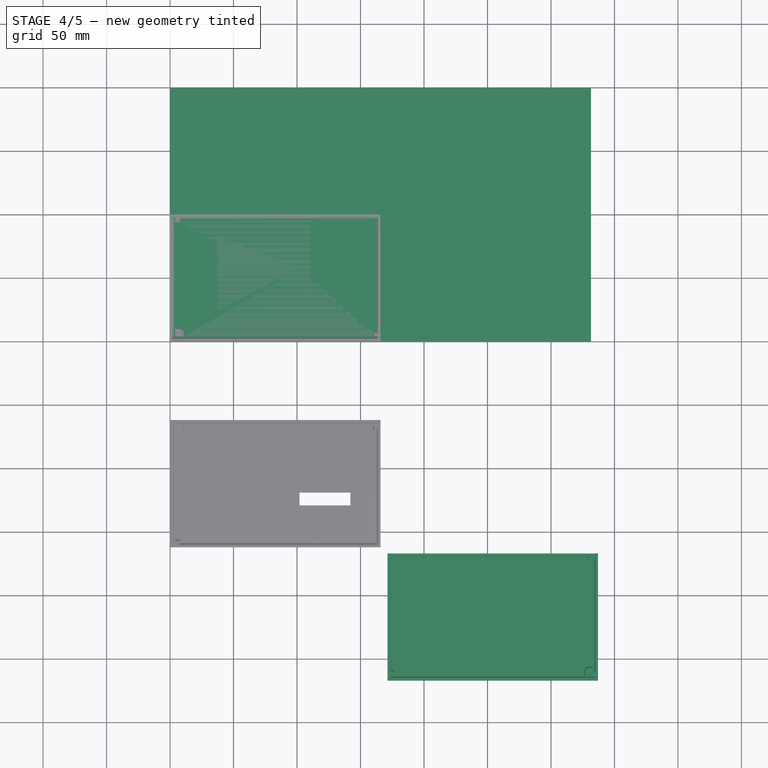
[diagram: stage 4 of 5 — top view after this stage's code; geometry added in this stage tinted green]
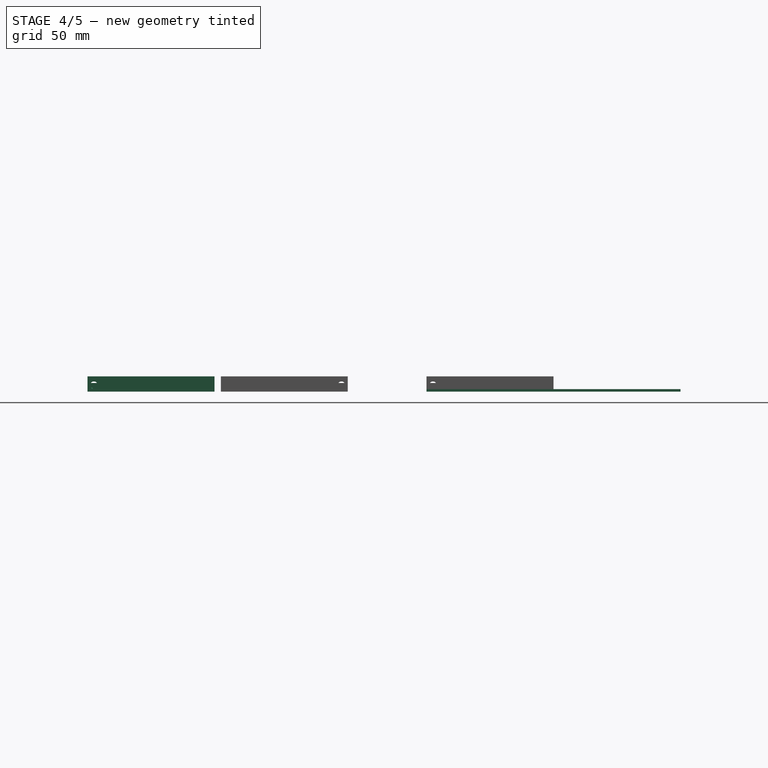
[diagram: stage 4 of 5 — right view after this stage's code; geometry added in this stage tinted green]
FEATURE [Sketcher::SketchObject] Sketch  label="Base"
  MapMode = 5
  Support = -> [XY_Plane]
  sketch-geometry (4):
    g0: LineSegment StartX=0 StartY=0 StartZ=0 EndX=331.5 EndY=0 EndZ=0
    g1: LineSegment StartX=331.5 StartY=0 StartZ=0 EndX=331.5 EndY=200 EndZ=0
    g2: LineSegment StartX=331.5 StartY=200 StartZ=0 EndX=0 EndY=200 EndZ=0
    g3: LineSegment StartX=0 StartY=200 StartZ=0 EndX=0 EndY=0 EndZ=0
  constraints (11):
    c: Coincident(g0,g1)
    c: Coincident(g1,g2)
    c: Coincident(g2,g3)
    c: Coincident(g3,g0)
    c: Horizontal(g0)
    c: Horizontal(g2)
    c: Vertical(g1)
    c: Vertical(g3)
    c: Coincident(g0,g-1)
    c: Distance(g3) = 200
    c: Distance(g0) = 331.5
FEATURE [PartDesign::Pad] Pad  label="Base Pad"
  Length = 2
  Length2 = 100
  Profile = -> Sketch
  Type = 0
FEATURE [PartDesign::Chamfer] Chamfer002
  Base = -> Pocket002 [Edge48,Edge32,Edge55,Edge57,Edge59,Edge61,Edge60,Edge62,Edge56,Edge51]
  BaseFeature = -> Pocket002
  Size = 1
FEATURE [PartDesign::Chamfer] Chamfer003
  Base = -> Chamfer002 [Edge59,Edge60,Edge61]
  BaseFeature = -> Chamfer002
  Size = 1
FEATURE [PartDesign::Chamfer] Chamfer004
  Base = -> Chamfer003 [Edge81]
  BaseFeature = -> Chamfer003
  Size = 1
FEATURE [PartDesign::Chamfer] Chamfer005
  Base = -> Chamfer004 [Edge106]
  BaseFeature = -> Chamfer004
  Size = 1
FEATURE [PartDesign::Body] Body002  label="Back001"
  Group = -> [Sketch008,Pad006,Sketch009,Pad007,Sketch010,Pad008,Sketch011,Pad009,Sketch012,Pocket002,Chamfer002,Chamfer003,Chamfer004,Chamfer005]
  Origin = -> Origin002
  Placement = pos=(333,-62,0) rot=(0,0,1;3.14159rad)
  Tip = -> Chamfer005
FEATURE [Part::Mirroring] Part__Mirroring  label="Back001 (Mirror #1)"
  Base = (0,0,0)
  Normal = (0,1,0)
  Placement = pos=(4,-329,0) rot=(0,0,1;0rad)
  Source = -> Body002
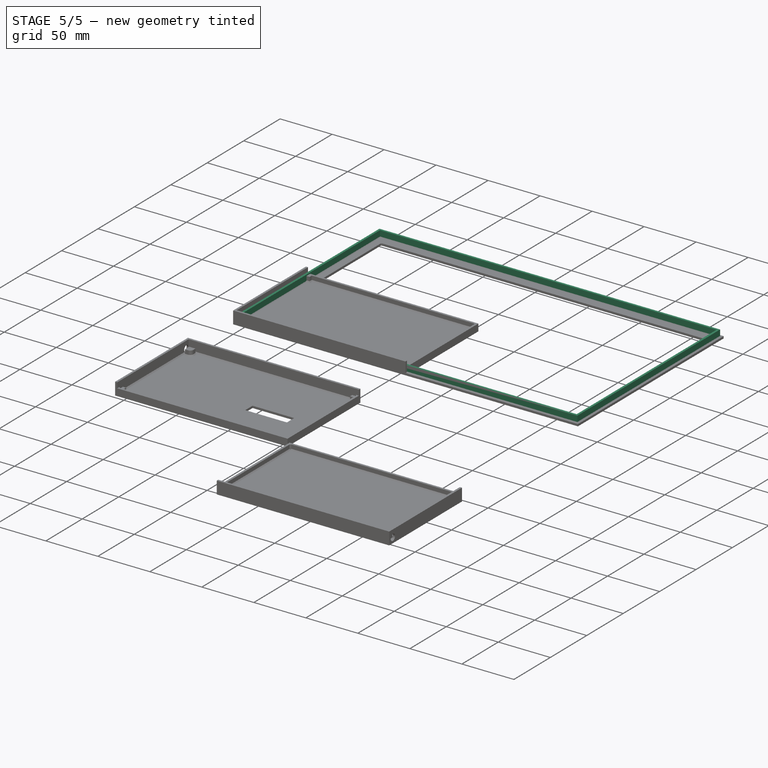
[diagram: stage 5 of 5 — iso view after this stage's code; geometry added in this stage tinted green]
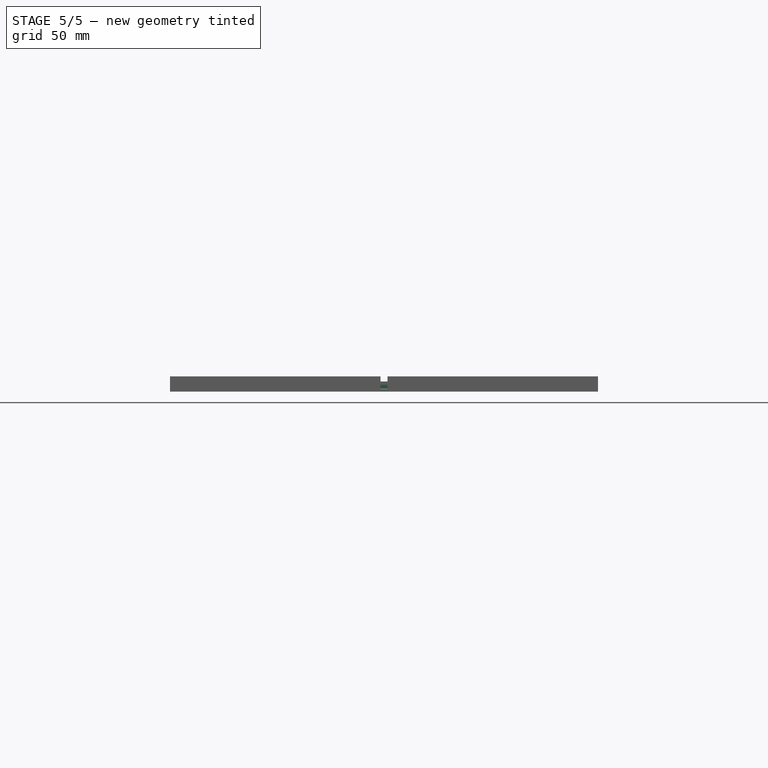
[diagram: stage 5 of 5 — front view after this stage's code; geometry added in this stage tinted green]
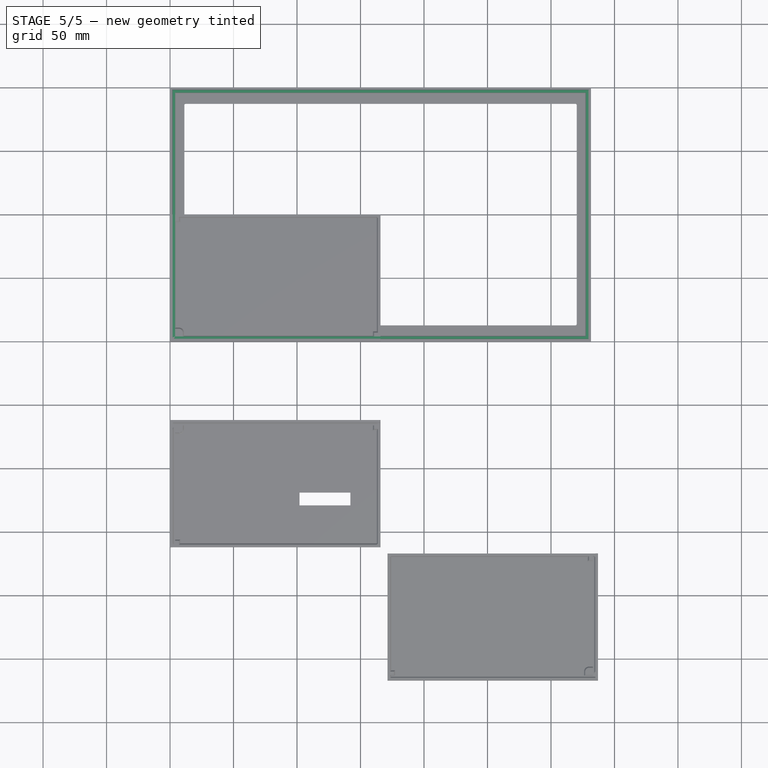
[diagram: stage 5 of 5 — top view after this stage's code; geometry added in this stage tinted green]
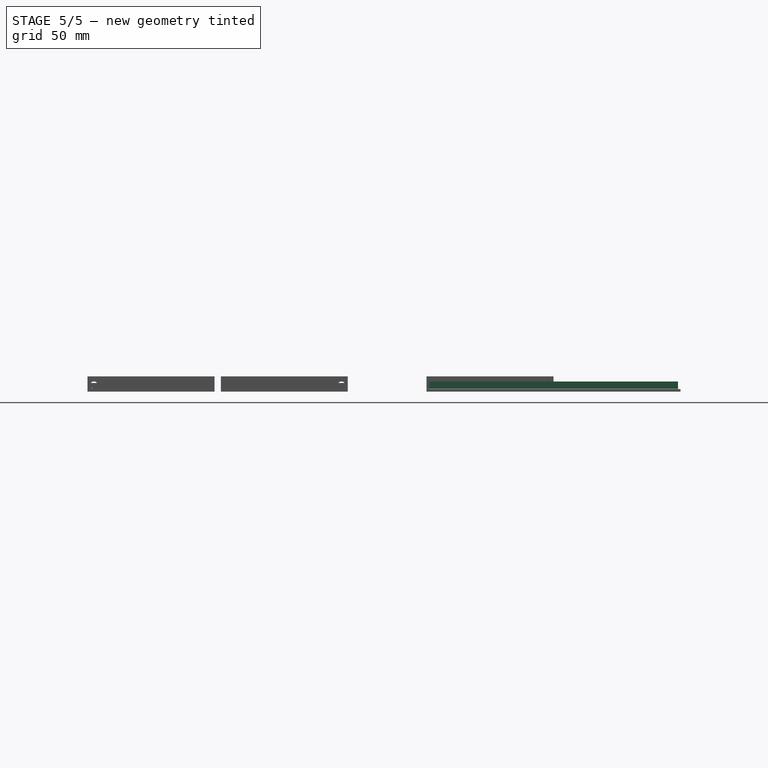
[diagram: stage 5 of 5 — right view after this stage's code; geometry added in this stage tinted green]
FEATURE [Sketcher::SketchObject] Sketch001  label="Screen"
  ExternalGeometry = -> [Pad]
  MapMode = 5
  Placement = pos=(0,0,2) rot=(0,0,1;0rad)
  Support = -> [Pad]
  sketch-geometry (4):
    g0: LineSegment StartX=11.25 StartY=187.25 StartZ=0 EndX=320.25 EndY=187.25 EndZ=0
    g1: LineSegment StartX=320.25 StartY=187.25 StartZ=0 EndX=320.25 EndY=12.75 EndZ=0
    g2: LineSegment StartX=320.25 StartY=12.75 StartZ=0 EndX=11.25 EndY=12.75 EndZ=0
    g3: LineSegment StartX=11.25 StartY=12.75 StartZ=0 EndX=11.25 EndY=187.25 EndZ=0
  constraints (12):
    c: Coincident(g0,g1)
    c: Coincident(g1,g2)
    c: Coincident(g2,g3)
    c: Coincident(g3,g0)
    c: Horizontal(g0)
    c: Horizontal(g2)
    c: Vertical(g1)
    c: Vertical(g3)
    c: DistanceX(g-1,g2) = 11.25
    c: DistanceY(g-1,g2) = 12.75
    c: DistanceX(g0,g-3) = 11.25
    c: DistanceY(g0,g-3) = 12.75
FEATURE [PartDesign::Pocket] Pocket  label="Screen Pocket"
  BaseFeature = -> Pad
  Length = 5
  Length2 = 100
  Profile = -> Sketch001
  Type = 1
FEATURE [Sketcher::SketchObject] Sketch002  label="Walls"
  ExternalGeometry = -> [Pocket]
  MapMode = 5
  Placement = pos=(0,0,2) rot=(0,0,1;0rad)
  Support = -> [Pocket]
  sketch-geometry (8):
    g0: LineSegment StartX=2 StartY=2 StartZ=0 EndX=329.5 EndY=2 EndZ=0
    g1: LineSegment StartX=329.5 StartY=2 StartZ=0 EndX=329.5 EndY=198 EndZ=0
    g2: LineSegment StartX=329.5 StartY=198 StartZ=0 EndX=2 EndY=198 EndZ=0
    g3: LineSegment StartX=2 StartY=198 StartZ=0 EndX=2 EndY=2 EndZ=0
    g4: LineSegment StartX=4 StartY=4 StartZ=0 EndX=327.5 EndY=4 EndZ=0
    g5: LineSegment StartX=327.5 StartY=4 StartZ=0 EndX=327.5 EndY=196 EndZ=0
    g6: LineSegment StartX=327.5 StartY=196 StartZ=0 EndX=4 EndY=196 EndZ=0
    g7: LineSegment StartX=4 StartY=196 StartZ=0 EndX=4 EndY=4 EndZ=0
  constraints (24):
    c: Coincident(g0,g1)
    c: Coincident(g1,g2)
    c: Coincident(g2,g3)
    c: Coincident(g3,g0)
    c: Horizontal(g0)
    c: Horizontal(g2)
    c: Vertical(g1)
    c: Vertical(g3)
    c: DistanceX(g-1,g0) = 2
    c: DistanceY(g-1,g0) = 2
    c: DistanceX(g1,g-3) = 2
    c: DistanceY(g1,g-3) = 2
    c: Coincident(g4,g5)
    c: Coincident(g5,g6)
    c: Coincident(g6,g7)
    c: Coincident(g7,g4)
    c: Horizontal(g4)
    c: Horizontal(g6)
    c: Vertical(g5)
    c: Vertical(g7)
    c: DistanceX(g5,g1) = 2
    c: DistanceY(g5,g1) = 2
    c: DistanceX(g0,g4) = 2
    c: DistanceY(g0,g4) = 2
FEATURE [PartDesign::Pad] Pad001  label="Walls Pad"
  BaseFeature = -> Pocket
  Length = 6
  Length2 = 100
  Profile = -> Sketch002
  Type = 0
FEATURE [App::MeasureDistance] Distance  label="Distance: 323.50 mm"
  Distance = 323.5
  P1 = (327.5,196,2.18229)
  P2 = (4,196,2.24227)
FEATURE [App::MeasureDistance] Distance001  label="Distance: 309.00 mm"
  Distance = 309
  P1 = (11.25,187.25,0.0836824)
  P2 = (320.25,187.25,0.121847)
FEATURE [App::MeasureDistance] Distance002  label="Distance: 192.00 mm"
  Distance = 192.001
  P1 = (4,4,2.68348)
  P2 = (4,196,2.22222)
FEATURE [App::MeasureDistance] Distance003  label="Distance: 174.50 mm"
  Distance = 174.5
  P1 = (11.25,12.75,1.23565)
  P2 = (11.25,187.25,1.2891)
FEATURE [App::MeasureDistance] Distance004  label="Distance: 331.50 mm"
  Distance = 331.5
  P1 = (0,0,1.53799)
  P2 = (331.5,0,1.57904)
FEATURE [App::MeasureDistance] Distance005  label="Distance: 200.00 mm"
  Distance = 200
  P1 = (331.5,0,0.0267274)
  P2 = (331.5,200,0.00904126)
FEATURE [PartDesign::Chamfer] Chamfer
  Base = -> Pad001 [Edge39,Edge40,Edge37,Edge38]
  BaseFeature = -> Pad001
  Size = 0.5
FEATURE [PartDesign::Chamfer] Chamfer001
  Base = -> Chamfer [Edge53,Edge51,Edge55,Edge56]
  BaseFeature = -> Chamfer
  Size = 0.5
FEATURE [PartDesign::Fillet] Fillet
  Base = -> Chamfer001 [Edge62,Edge61,Edge64,Edge63]
  BaseFeature = -> Chamfer001
  Radius = 1
FEATURE [PartDesign::Fillet] Fillet001
  Base = -> Fillet [Edge72]
  BaseFeature = -> Fillet
  Radius = 1
FEATURE [PartDesign::Fillet] Fillet002
  Base = -> Fillet001 [Edge32]
  BaseFeature = -> Fillet001
  Radius = 2
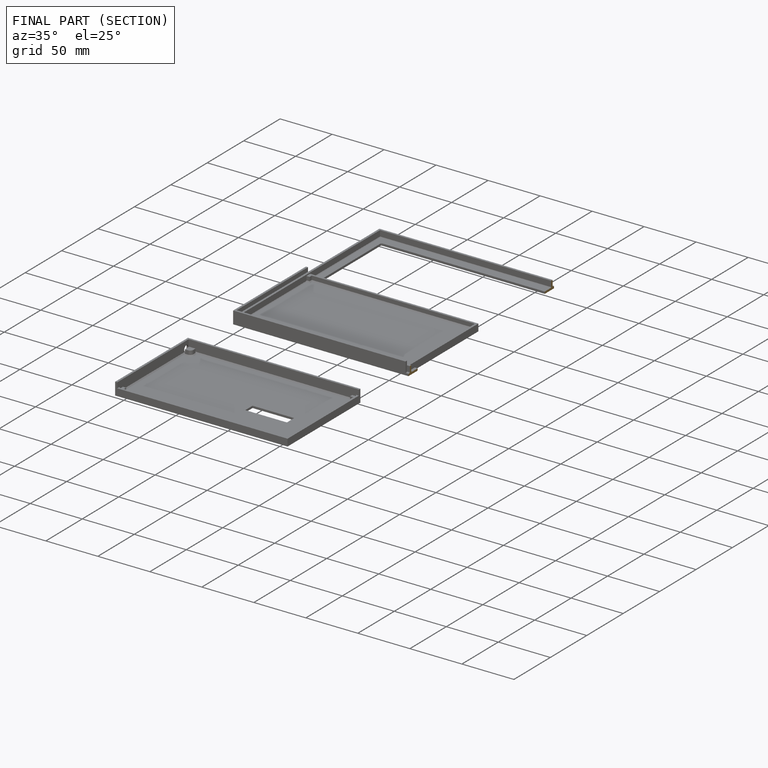
[diagram: finished part — half-section view (interior)]
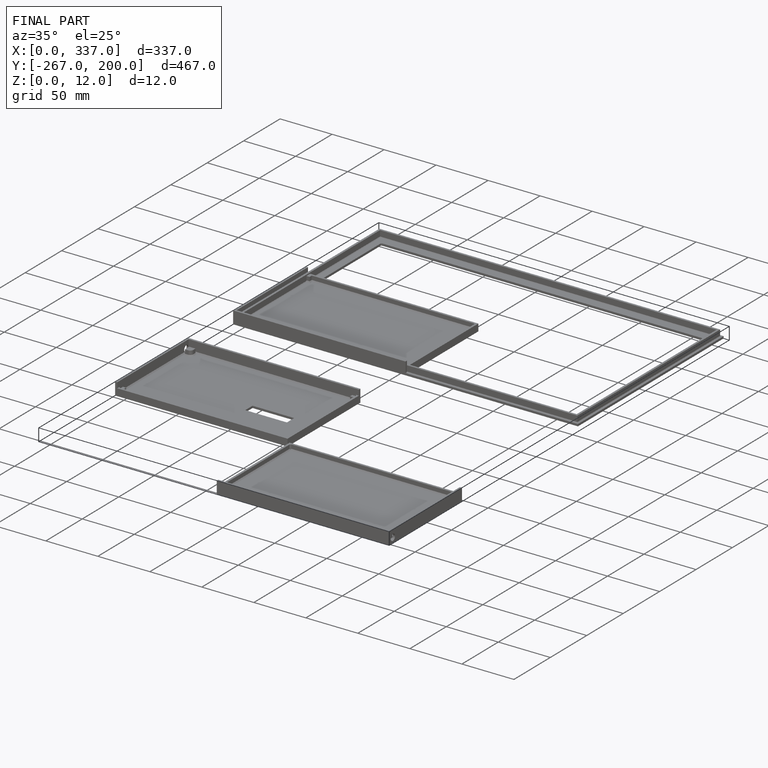
[diagram: finished part — iso view with bounding-box wireframe]
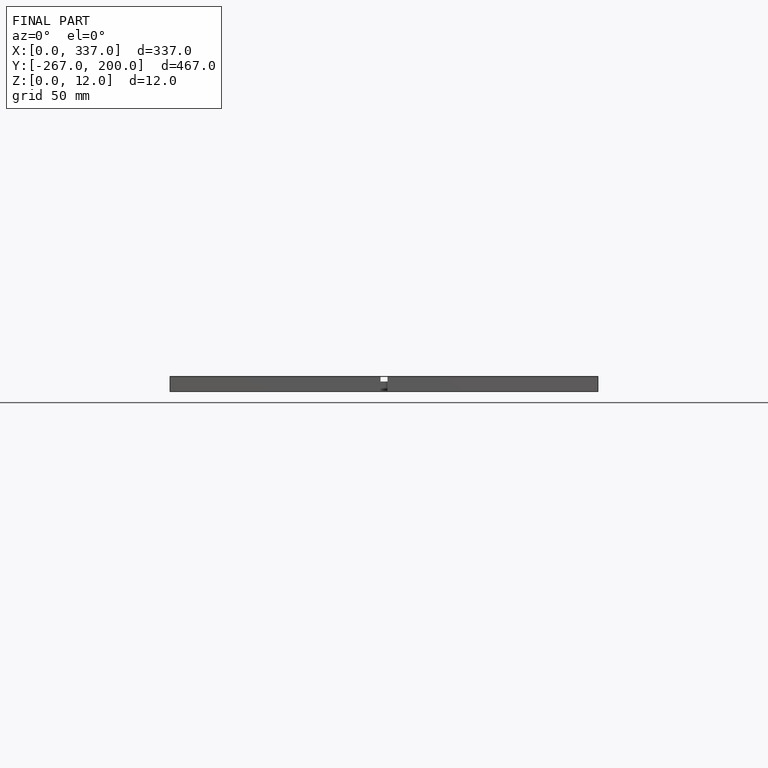
[diagram: finished part — front view with bounding-box wireframe]
